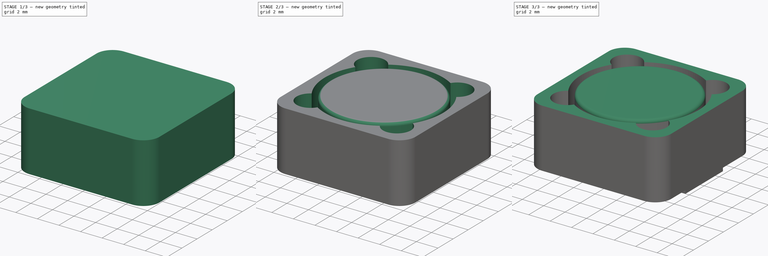
[diagram: build sequence overview — one tinted view per stage of 3, left to right]
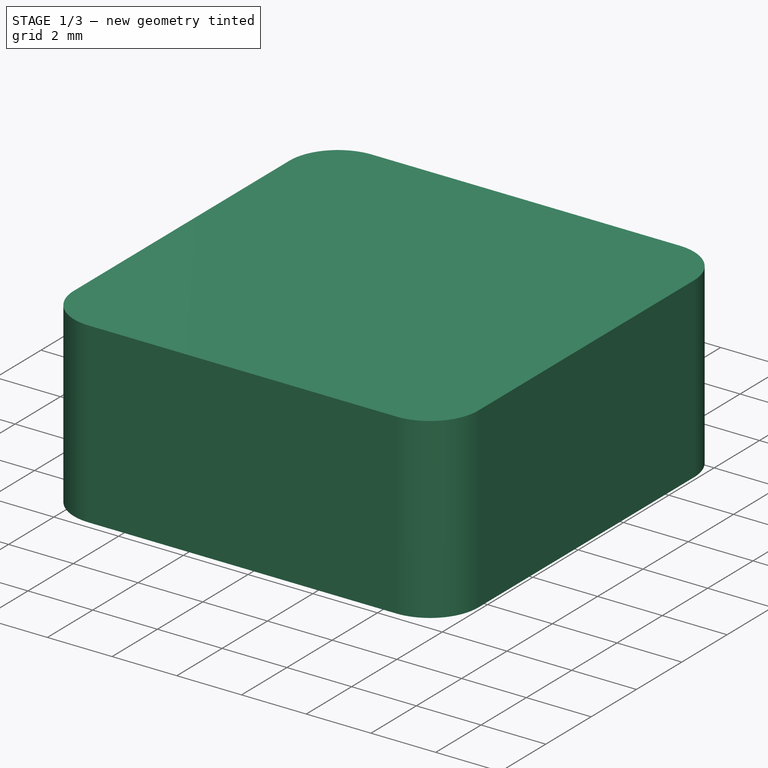
[diagram: stage 1 of 3 — iso view after this stage's code; geometry added in this stage tinted green]
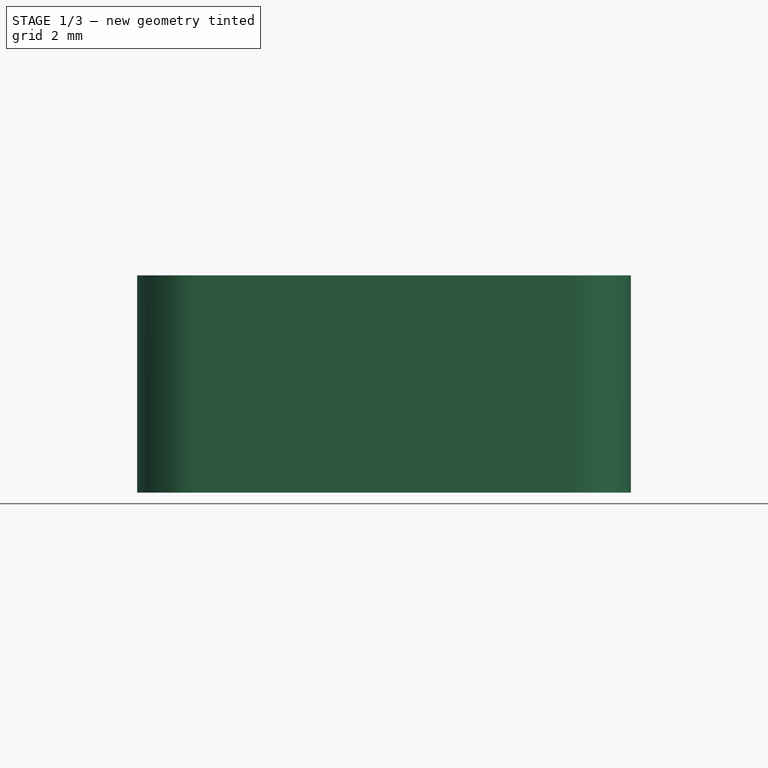
[diagram: stage 1 of 3 — front view after this stage's code; geometry added in this stage tinted green]
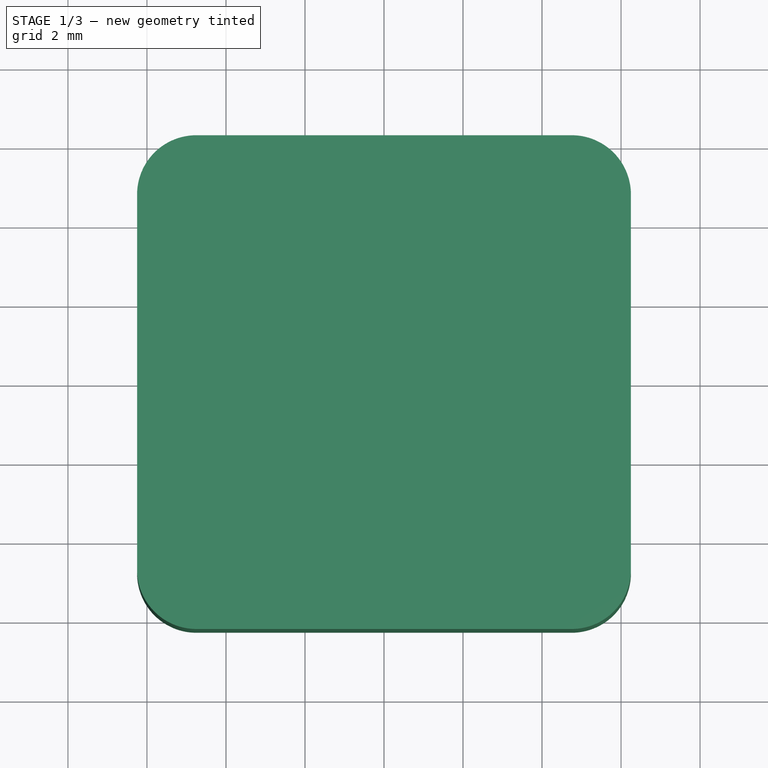
[diagram: stage 1 of 3 — top view after this stage's code; geometry added in this stage tinted green]
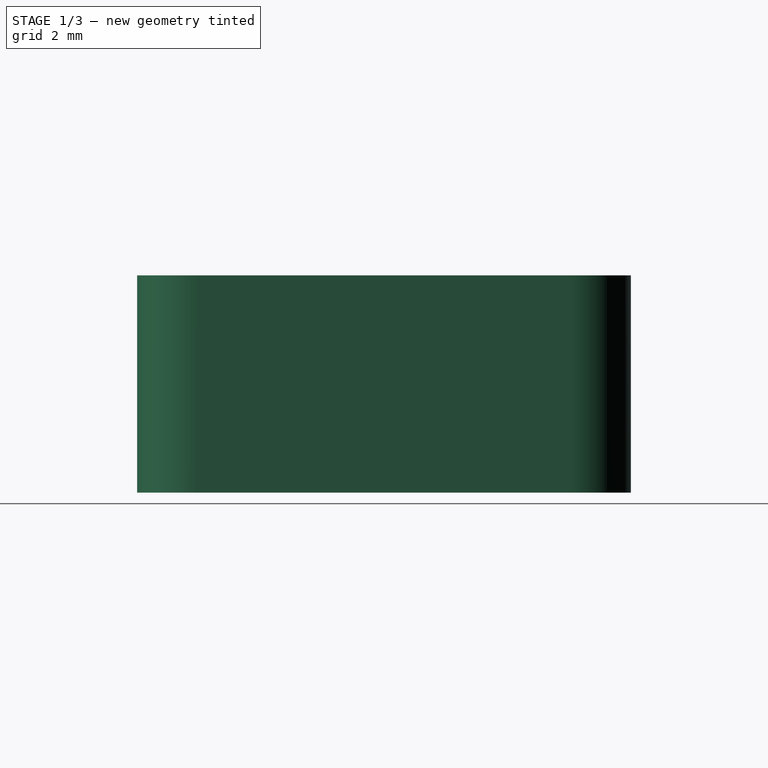
[diagram: stage 1 of 3 — right view after this stage's code; geometry added in this stage tinted green]
FCSTD DOCUMENT  (FreeCAD 0.17R13171 (Git))
Label: SRR1260
License: All rights reserved
LicenseURL: http://en.wikipedia.org/wiki/All_rights_reserved
objects: Sketcher::SketchObject×4, PartDesign::Pad×3, PartDesign::Body×3, PartDesign::Fillet×2, PartDesign::Pocket×1, Part::MultiFuse×1
note: 18 computed .brp shape members not serialized (recipe doc carries the construction recipe); baked Part::Feature solids carry a one-line shape summary decoded from their .brp

FEATURE [Sketcher::SketchObject] Sketch
  MapMode = 5
  Support = -> [XY_Plane]
  sketch-geometry (4):
    g0: LineSegment StartX=-6.25 StartY=6.25 StartZ=0 EndX=6.25 EndY=6.25 EndZ=0
    g1: LineSegment StartX=6.25 StartY=6.25 StartZ=0 EndX=6.25 EndY=-6.25 EndZ=0
    g2: LineSegment StartX=6.25 StartY=-6.25 StartZ=0 EndX=-6.25 EndY=-6.25 EndZ=0
    g3: LineSegment StartX=-6.25 StartY=-6.25 StartZ=0 EndX=-6.25 EndY=6.25 EndZ=0
  constraints (12):
    c: Coincident(g0,g1)
    c: Coincident(g1,g2)
    c: Coincident(g2,g3)
    c: Coincident(g3,g0)
    c: Horizontal(g0)
    c: Horizontal(g2)
    c: Vertical(g1)
    c: Vertical(g3)
    c: Distance(g0) = 12.5
    c: Equal(g0,g1)
    c: Symmetric(g0,g0,g-2)
    c: Symmetric(g0,g1,g-1)
FEATURE [PartDesign::Pad] Pad
  Length = 5.5
  Length2 = 100
  Profile = -> Sketch
  Type = 0
FEATURE [PartDesign::Body] Body002  label="Pad_2"
  Group = -> [Sketch002,Pad002]
  Origin = -> Origin002
  Tip = -> Pad002
FEATURE [PartDesign::Fillet] Fillet
  Base = -> Pad [Edge8,Edge5,Edge1,Edge2]
  BaseFeature = -> Pad
  Radius = 1.5
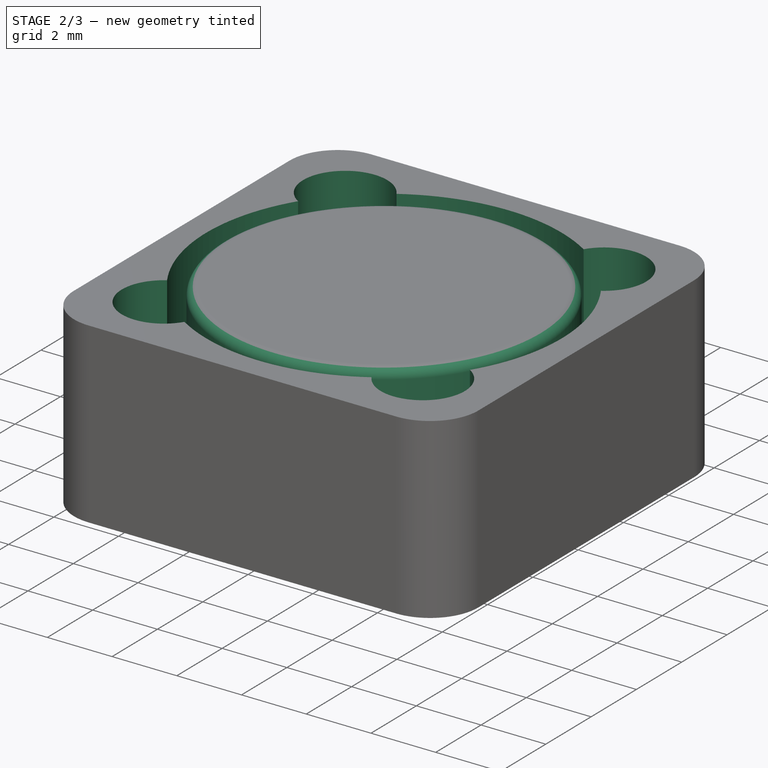
[diagram: stage 2 of 3 — iso view after this stage's code; geometry added in this stage tinted green]
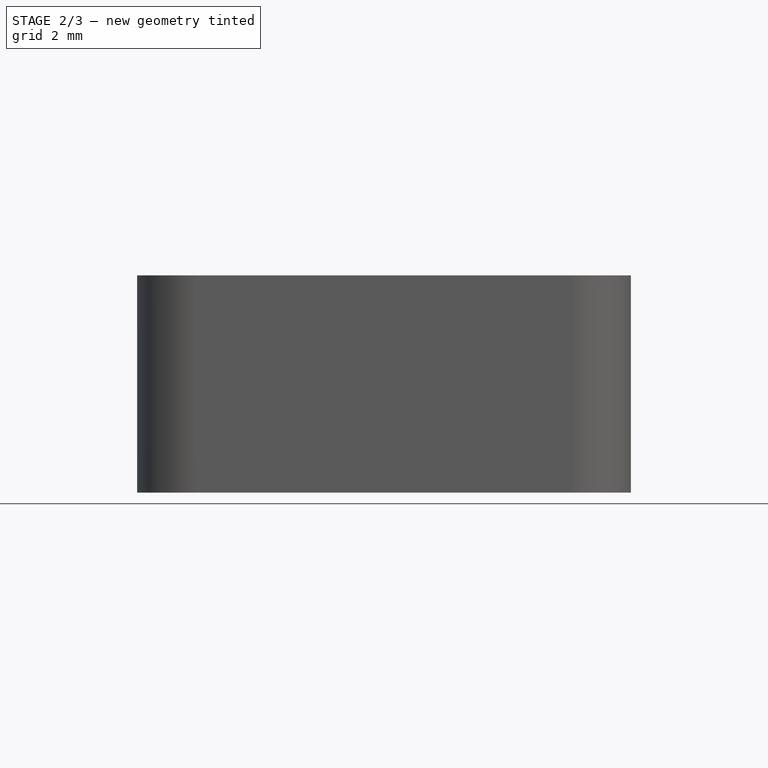
[diagram: stage 2 of 3 — front view after this stage's code; geometry added in this stage tinted green]
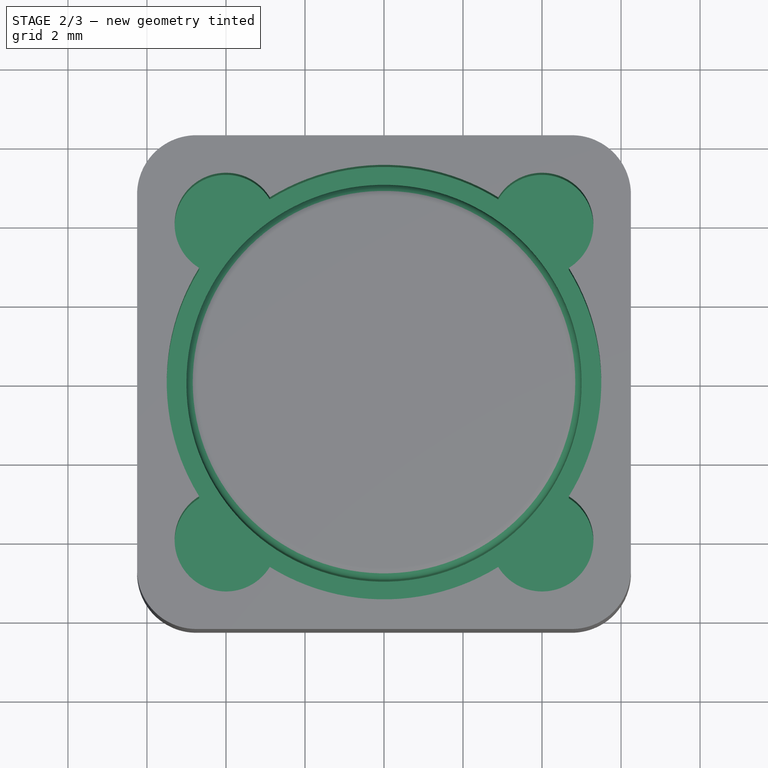
[diagram: stage 2 of 3 — top view after this stage's code; geometry added in this stage tinted green]
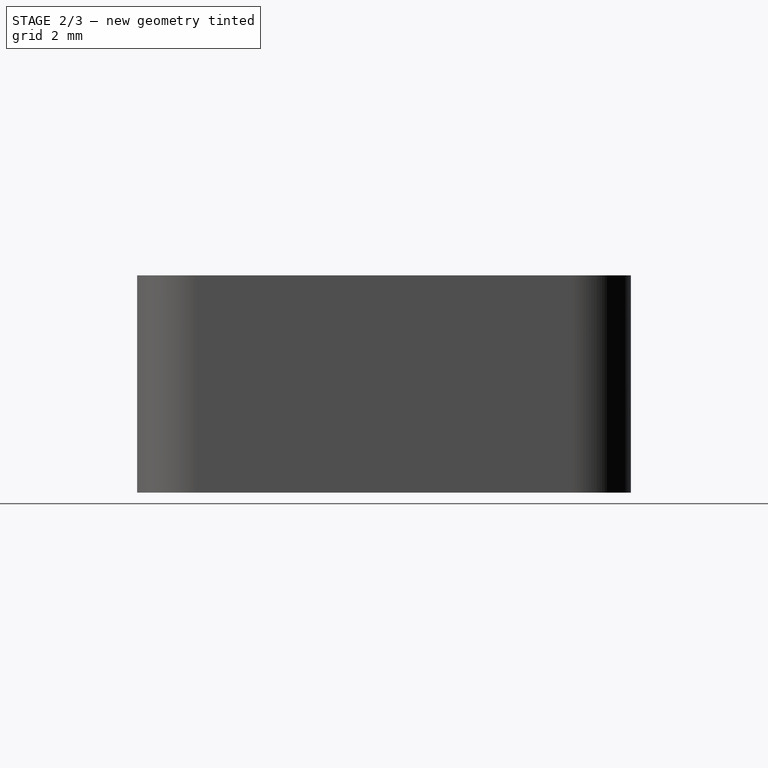
[diagram: stage 2 of 3 — right view after this stage's code; geometry added in this stage tinted green]
FEATURE [PartDesign::Body] Body001  label="Pad_1"
  Group = -> [Sketch001,Pad001]
  Origin = -> Origin001
  Tip = -> Pad001
FEATURE [Sketcher::SketchObject] Sketch002
  MapMode = 5
  Support = -> [XY_Plane002]
  sketch-geometry (4):
    g0: LineSegment StartX=3.5 StartY=2.5 StartZ=0 EndX=6 EndY=2.5 EndZ=0
    g1: LineSegment StartX=6 StartY=2.5 StartZ=0 EndX=6 EndY=-2.5 EndZ=0
    g2: LineSegment StartX=6 StartY=-2.5 StartZ=0 EndX=3.5 EndY=-2.5 EndZ=0
    g3: LineSegment StartX=3.5 StartY=-2.5 StartZ=0 EndX=3.5 EndY=2.5 EndZ=0
  constraints (12):
    c: Coincident(g0,g1)
    c: Coincident(g1,g2)
    c: Coincident(g2,g3)
    c: Coincident(g3,g0)
    c: Horizontal(g0)
    c: Horizontal(g2)
    c: Vertical(g1)
    c: Vertical(g3)
    c: Distance(g0) = 2.5
    c: Distance(g1) = 5
    c: Symmetric(g0,g1,g-1)
    c: DistanceX(g-2,g0) = 3.5
FEATURE [PartDesign::Pad] Pad002
  Length = 0.5
  Length2 = 100
  Profile = -> Sketch002
  Type = 0
FEATURE [Sketcher::SketchObject] Sketch003
  MapMode = 5
  Placement = pos=(0,0,5.5) rot=(0,0,1;0rad)
  Support = -> [Fillet]
  sketch-geometry (9):
    g0: ArcOfCircle CenterX=0 CenterY=0 CenterZ=0 NormalX=0 NormalY=0 NormalZ=1 AngleXU=0 Radius=5.5 StartAngle=2.58807 EndAngle=3.69511
    g1: Circle CenterX=0 CenterY=0 CenterZ=0 NormalX=0 NormalY=0 NormalZ=1 AngleXU=0 Radius=5
    g2: ArcOfCircle CenterX=-4 CenterY=4 CenterZ=0 NormalX=0 NormalY=0 NormalZ=1 AngleXU=0 Radius=1.3 StartAngle=0.549322 EndAngle=4.16307
    g3: ArcOfCircle CenterX=4 CenterY=4 CenterZ=0 NormalX=0 NormalY=0 NormalZ=1 AngleXU=0 Radius=1.3 StartAngle=5.26171 EndAngle=8.87546
    g4: ArcOfCircle CenterX=4 CenterY=-4 CenterZ=0 NormalX=0 NormalY=0 NormalZ=1 AngleXU=0 Radius=1.3 StartAngle=3.69091 EndAngle=7.30466
    g5: ArcOfCircle CenterX=-4 CenterY=-4 CenterZ=0 NormalX=0 NormalY=0 NormalZ=1 AngleXU=0 Radius=1.3 StartAngle=2.12012 EndAngle=5.73386
    g6: ArcOfCircle CenterX=0 CenterY=0 CenterZ=0 NormalX=0 NormalY=0 NormalZ=1 AngleXU=0 Radius=5.5 StartAngle=1.01728 EndAngle=2.12431
    g7: ArcOfCircle CenterX=0 CenterY=0 CenterZ=0 NormalX=0 NormalY=0 NormalZ=1 AngleXU=0 Radius=5.5 StartAngle=5.72967 EndAngle=6.8367
    g8: ArcOfCircle CenterX=0 CenterY=0 CenterZ=0 NormalX=0 NormalY=0 NormalZ=1 AngleXU=0 Radius=5.5 StartAngle=4.15887 EndAngle=5.26591
  constraints (30):
    c: Coincident(g0,g-1)
    c: Coincident(g1,g-1)
    c: Horizontal(g2,g3)
    c: Horizontal(g4,g5)
    c: Vertical(g3,g4)
    c: Vertical(g2,g5)
    c: Equal(g2,g5)
    c: Equal(g5,g4)
    c: Equal(g4,g3)
    c: Radius(g3) = 1.3
    c: Symmetric(g4,g3,g-1)
    c: Symmetric(g2,g3,g-2)
    c: DistanceY(g-1,g3) = 4
    c: DistanceX(g-2,g3) = 4
    c: Radius(g0) = 5.5
    c: Radius(g1) = 5
    c: Equal(g0,g6)
    c: Coincident(g0,g6)
    c: Equal(g0,g7)
    c: Coincident(g0,g7)
    c: Equal(g0,g8)
    c: Coincident(g0,g8)
    c: Coincident(g5,g0)
    c: Coincident(g5,g8)
    c: Coincident(g4,g8)
    c: Coincident(g4,g7)
    c: Coincident(g3,g7)
    c: Coincident(g3,g6)
    c: Coincident(g2,g6)
    c: Coincident(g2,g0)
FEATURE [PartDesign::Pocket] Pocket
  BaseFeature = -> Fillet
  Length = 3
  Length2 = 100
  Profile = -> Sketch003
  Type = 0
FEATURE [PartDesign::Fillet] Fillet001
  Base = -> Pocket [Edge50]
  BaseFeature = -> Pocket
  Radius = 0.3
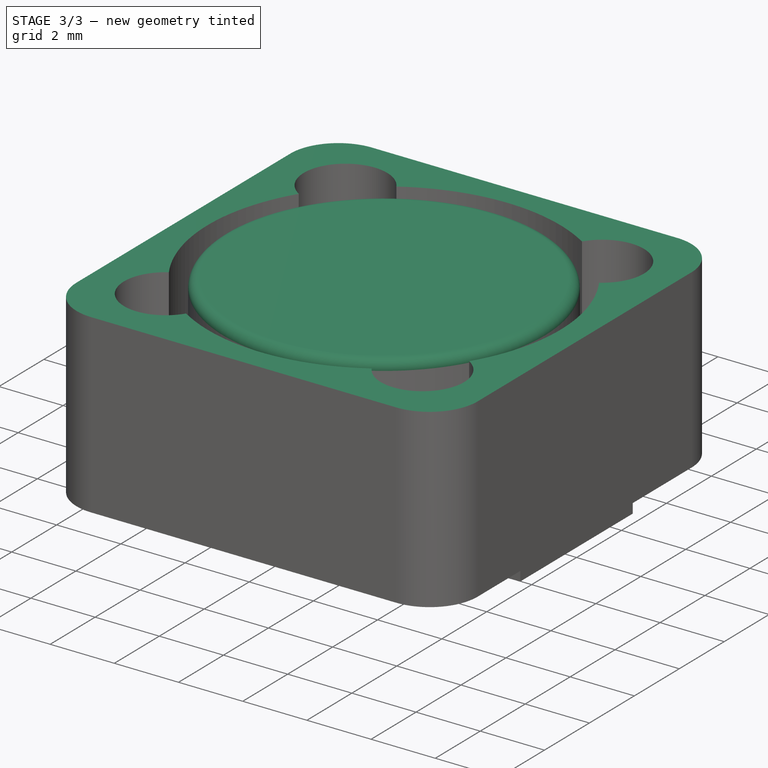
[diagram: stage 3 of 3 — iso view after this stage's code; geometry added in this stage tinted green]
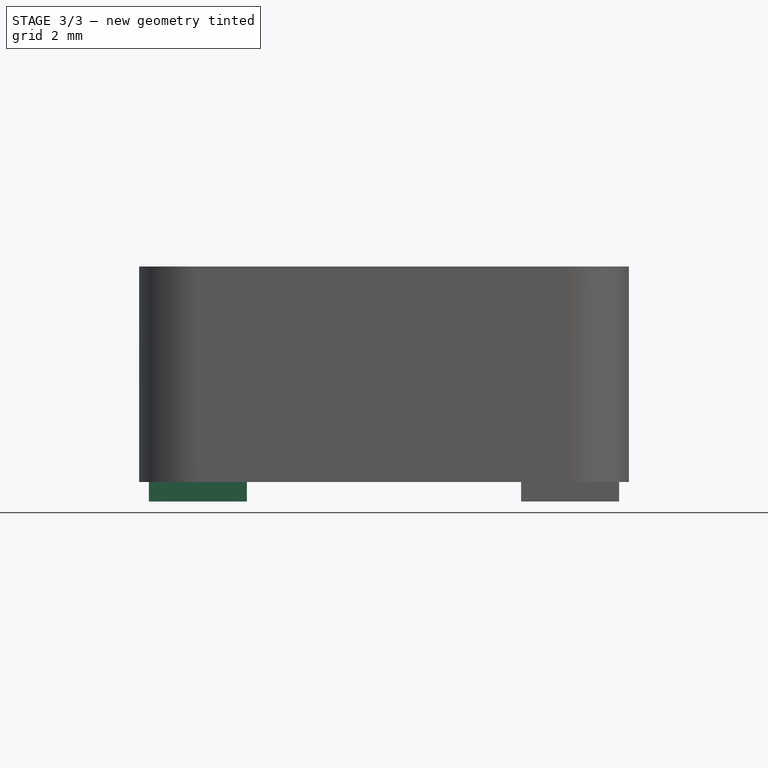
[diagram: stage 3 of 3 — front view after this stage's code; geometry added in this stage tinted green]
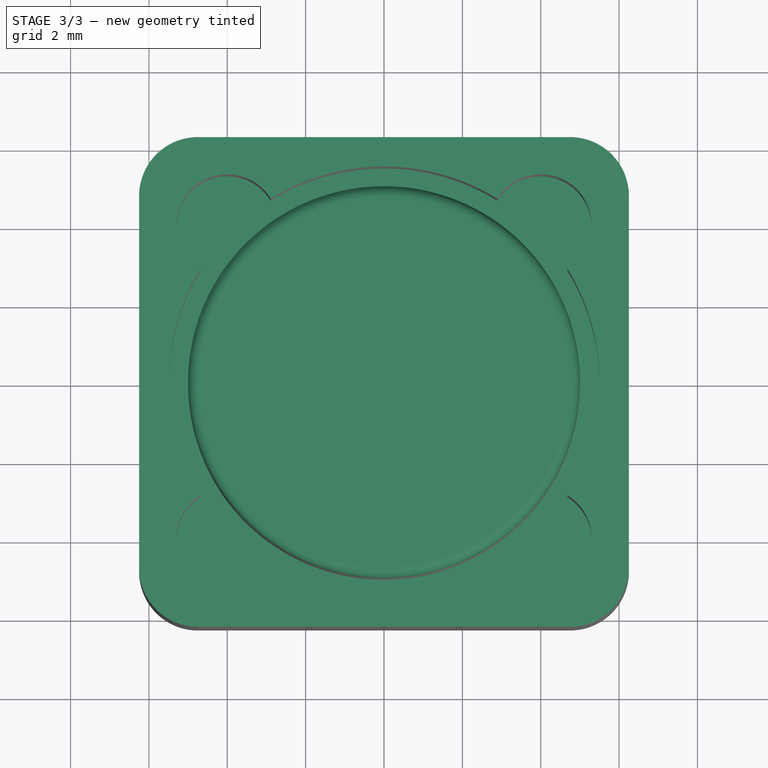
[diagram: stage 3 of 3 — top view after this stage's code; geometry added in this stage tinted green]
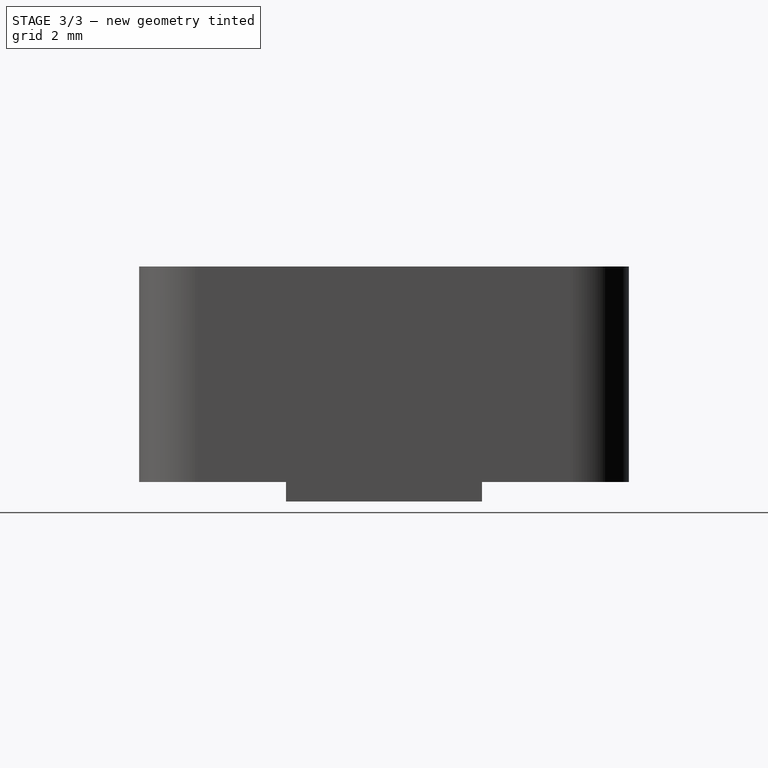
[diagram: stage 3 of 3 — right view after this stage's code; geometry added in this stage tinted green]
FEATURE [Sketcher::SketchObject] Sketch001
  MapMode = 5
  Support = -> [XY_Plane001]
  sketch-geometry (4):
    g0: LineSegment StartX=-6 StartY=2.5 StartZ=0 EndX=-3.5 EndY=2.5 EndZ=0
    g1: LineSegment StartX=-3.5 StartY=2.5 StartZ=0 EndX=-3.5 EndY=-2.5 EndZ=0
    g2: LineSegment StartX=-3.5 StartY=-2.5 StartZ=0 EndX=-6 EndY=-2.5 EndZ=0
    g3: LineSegment StartX=-6 StartY=-2.5 StartZ=0 EndX=-6 EndY=2.5 EndZ=0
  constraints (12):
    c: Coincident(g0,g1)
    c: Coincident(g1,g2)
    c: Coincident(g2,g3)
    c: Coincident(g3,g0)
    c: Horizontal(g0)
    c: Horizontal(g2)
    c: Vertical(g1)
    c: Vertical(g3)
    c: Distance(g0,g-2) = 3.5
    c: Distance(g0) = 2.5
    c: Distance(g3) = 5
    c: Symmetric(g0,g1,g-1)
FEATURE [PartDesign::Pad] Pad001  label="Pad1"
  Length = 0.5
  Length2 = 100
  Profile = -> Sketch001
  Type = 0
FEATURE [PartDesign::Body] Body
  Group = -> [Sketch,Pad,Fillet,Sketch003,Pocket,Fillet001]
  Origin = -> Origin
  Placement = pos=(0,0,0.5) rot=(0,0,1;0rad)
  Tip = -> Fillet001
FEATURE [Part::MultiFuse] Fusion
  Shapes = -> [Body,Body001,Body002]
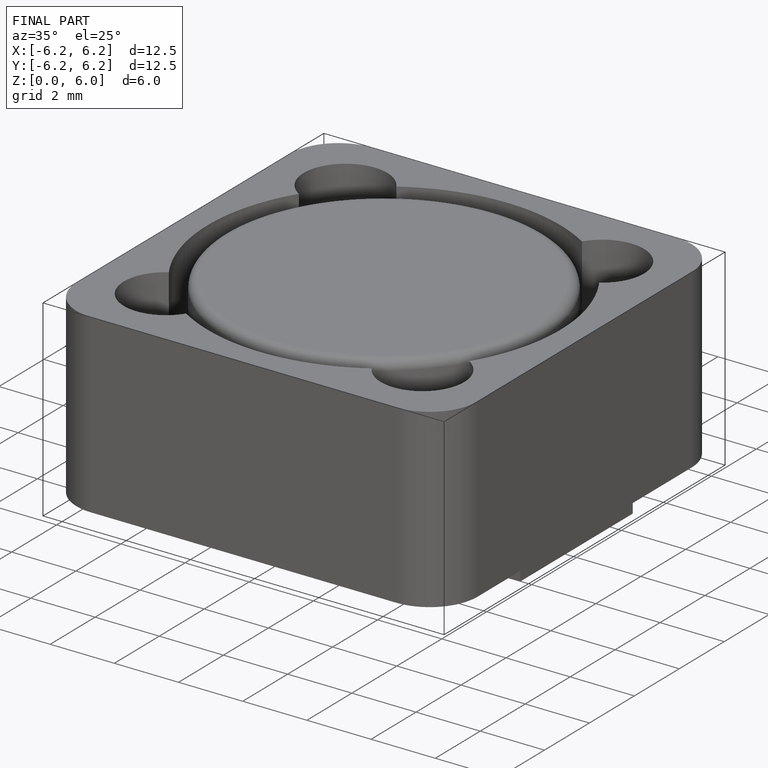
[diagram: finished part — iso view with bounding-box wireframe]
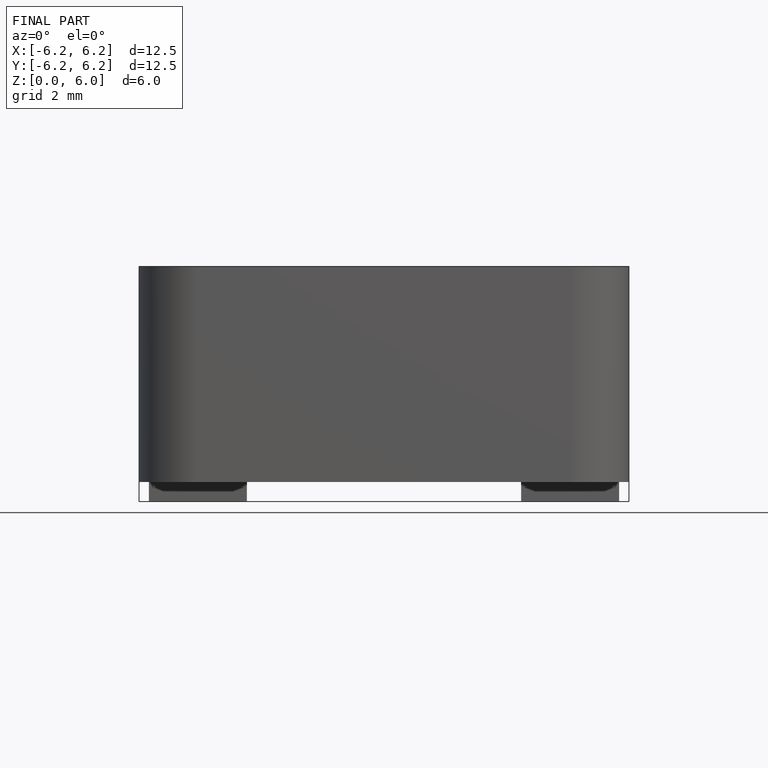
[diagram: finished part — front view with bounding-box wireframe]
